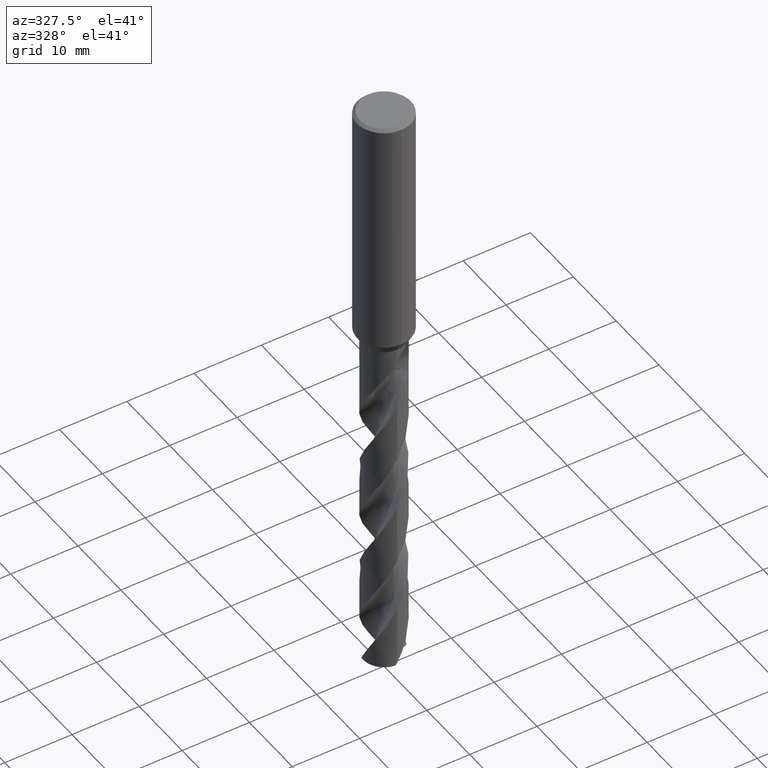
[diagram: clean part render]
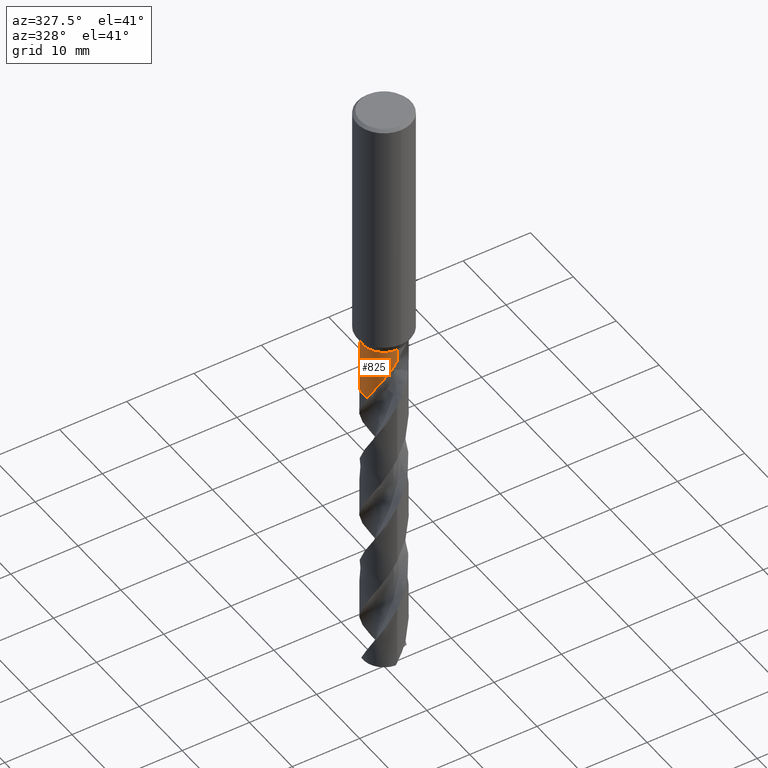
[diagram: same view with one face highlighted and labeled with its STEP entity id]
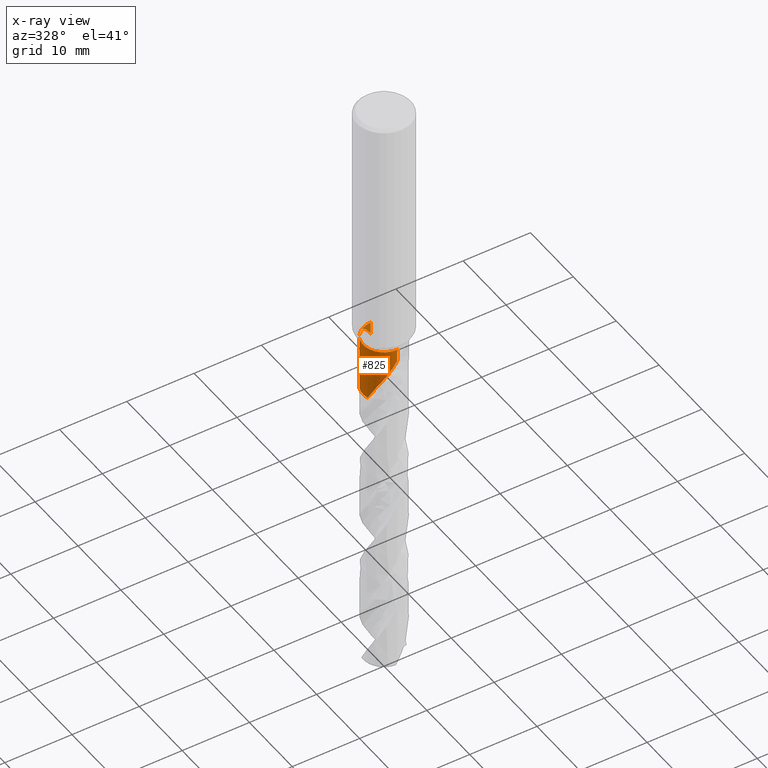
[diagram: x-ray of the same camera — body ghosted, the highlighted face saturated]
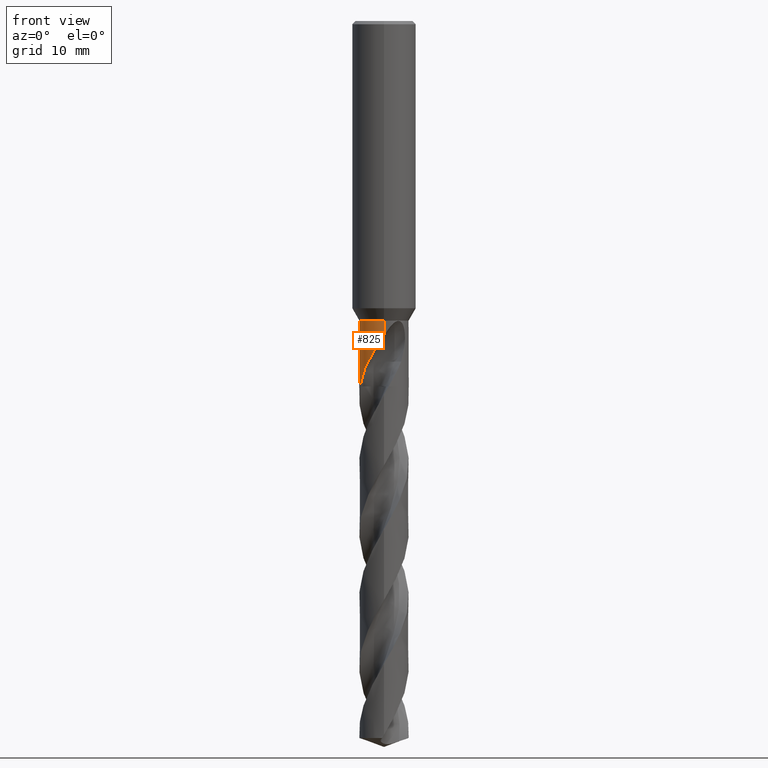
[diagram: same view with one face highlighted and labeled with its STEP entity id]
A machine part, auxiliary view. The second image highlights one B-rep face of the part: STEP entity #825.
The next image is the same camera in x-ray: the body ghosted, the highlighted face saturated — about 0% of this face is hidden behind the body in this view.
A second angle (front view) of the same face is appended — the face is thin or edge-on in the first view.
In plain terms, the highlighted cylindrical surface (edge-blend (fillet) strip) has radius 3.1 mm, axis along (-0, -0, 1).
Its self-contained STEP definition (entity closure, byte-faithful):
#311=VERTEX_POINT('',#867);
#441=EDGE_CURVE('',#507,#529,#1014,.T.);
#445=EDGE_CURVE('',#485,#507,#1018,.T.);
#465=VERTEX_POINT('',#1040);
#485=VERTEX_POINT('',#1063);
#489=EDGE_CURVE('',#643,#729,#1067,.T.);
#507=VERTEX_POINT('',#1086);
#529=VERTEX_POINT('',#1111);
#573=EDGE_CURVE('',#805,#465,#1159,.T.);
#619=EDGE_CURVE('',#729,#805,#1210,.T.);
#643=VERTEX_POINT('',#1236);
#669=EDGE_CURVE('',#529,#311,#1262,.T.);
#685=VERTEX_POINT('',#1279);
#729=VERTEX_POINT('',#1326);
#751=EDGE_CURVE('',#311,#685,#1351,.T.);
#763=EDGE_CURVE('',#685,#643,#1363,.T.);
#805=VERTEX_POINT('',#1409);
#817=EDGE_CURVE('',#485,#465,#1421,.T.);
#825=ADVANCED_FACE('',(#1429),#1430,.T.);
#867=CARTESIAN_POINT('',(3.79627969684937E-016,-3.1,-37.558845726812));
#1014=B_SPLINE_CURVE_WITH_KNOTS('',3,(#4894,#4895,#4896,#4897,#4898,#4899,#4900,#4901,#4902,#4903,#4904,#4905,#4906,#4907,#4908,#4909,#4910,#4911,#4912,#4913,#4914,#4915,#4916,#4917,#4918,#4919,#4920,#4921,#4922,#4923),.UNSPECIFIED.,.F.,.F.,(4,2,2,2,2,2,2,2,2,2,2,2,2,2,4),(0.0,1.51882806749273,2.34814309206107,3.09929389552643,3.97195054001823,5.02021064371514,5.92875563349046,6.34047695448428,6.64139503833722,6.92615155074463,7.28738216248135,7.81587719972129,8.56719503408588,9.05885319429526,9.57555253419861),.UNSPECIFIED.);
#1018=B_SPLINE_CURVE_WITH_KNOTS('',3,(#4929,#4930,#4931,#4932,#4933,#4934,#4935,#4936,#4937,#4938,#4939,#4940,#4941,#4942),.UNSPECIFIED.,.F.,.F.,(4,2,2,2,2,2,4),(0.0,0.223429847625214,1.43257159950263,2.01623723256052,2.69116966202911,3.32503215169044,3.98705332850251),.UNSPECIFIED.);
#1040=CARTESIAN_POINT('',(-0.590423451363101,3.0432548608489,-45.8));
#1063=CARTESIAN_POINT('',(-2.98248827714928,-0.845436973799404,-45.8));
#1067=B_SPLINE_CURVE_WITH_KNOTS('',3,(#6479,#6480,#6481,#6482,#6483,#6484,#6485,#6486,#6487,#6488,#6489,#6490,#6491,#6492,#6493,#6494,#6495,#6496,#6497,#6498,#6499,#6500,#6501,#6502,#6503,#6504,#6505,#6506,#6507,#6508),.UNSPECIFIED.,.F.,.F.,(4,2,2,2,2,2,2,2,2,2,2,2,2,2,4),(0.0,1.51882806749271,2.34814309206096,3.09929389552615,3.97195054001766,5.02021064371434,5.92875563348945,6.34047695448318,6.64139503833595,6.92615155074314,7.28738216247963,7.81587719972054,8.56719503408842,9.05885319430007,9.57555253420571),.UNSPECIFIED.);
#1086=CARTESIAN_POINT('',(-1.97536810780282,-2.38912553849217,-42.6922));
#1111=CARTESIAN_POINT('',(9.17234032325222E-013,-3.1,-39.3969657646597));
#1159=B_SPLINE_CURVE_WITH_KNOTS('',3,(#8223,#8224,#8225,#8226,#8227,#8228,#8229,#8230,#8231,#8232,#8233,#8234,#8235,#8236,#8237,#8238),.UNSPECIFIED.,.F.,.F.,(4,2,2,2,2,2,2,4),(0.0,0.855645555207331,1.6387157867661,2.06548718810102,2.70186416562109,3.02034895438932,3.17996382495218,3.3398075156364),.UNSPECIFIED.);
#1210=B_SPLINE_CURVE_WITH_KNOTS('',3,(#8446,#8447,#8448,#8449),.UNSPECIFIED.,.F.,.F.,(4,4),(0.0,1.78163168796761),.UNSPECIFIED.);
#1236=CARTESIAN_POINT('',(-9.18788344559697E-013,3.1,-39.3969657646597));
#1262=LINE('',#8924,#8925);
#1279=CARTESIAN_POINT('',(0.0,3.1,-37.558845726812));
#1326=CARTESIAN_POINT('',(-2.5222907062751,1.80223461098667,-40.9947012967414));
#1351=CIRCLE('',#10976,3.1);
#1363=LINE('',#11009,#11010);
#1409=CARTESIAN_POINT('',(-2.15473976281074,2.2286983991923,-42.6922));
#1421=CIRCLE('',#11625,3.1);
#1429=FACE_OUTER_BOUND('',#11664,.T.);
#1430=CYLINDRICAL_SURFACE('',#11665,3.1);
#4894=CARTESIAN_POINT('',(-1.97536810780282,-2.38912553849218,-42.6922));
#4895=CARTESIAN_POINT('',(-1.7708807234358,-2.55819905556719,-42.261022001472));
#4896=CARTESIAN_POINT('',(-1.53576649982898,-2.70849367566801,-41.8590250964486));
#4897=CARTESIAN_POINT('',(-1.1257973591669,-2.89271122258338,-41.1874616926583));
#4898=CARTESIAN_POINT('',(-0.978271281837683,-2.9457036191997,-40.9511832219425));
#4899=CARTESIAN_POINT('',(-0.692679434102976,-3.02490259327778,-40.4938093138893));
#4900=CARTESIAN_POINT('',(-0.555888832730762,-3.05288340430265,-40.2748457808992));
#4901=CARTESIAN_POINT('',(-0.259794797245681,-3.09326662945122,-39.8029211960476));
#4902=CARTESIAN_POINT('',(-0.0980180957186709,-3.10274750096445,-39.5462661558878));
#4903=CARTESIAN_POINT('',(0.261246521940544,-3.09519051117856,-38.9971963347391));
#4904=CARTESIAN_POINT('',(0.474254128986156,-3.0718168647194,-38.6847696046472));
#4905=CARTESIAN_POINT('',(0.885011757644606,-2.97742290574301,-38.169599482215));
#4906=CARTESIAN_POINT('',(1.11226752420549,-2.90550662943275,-37.9182166185662));
#4907=CARTESIAN_POINT('',(1.45621687591263,-2.73927441599933,-37.6828219096917));
#4908=CARTESIAN_POINT('',(1.57006637132762,-2.6765179412803,-37.6246464646858));
#4909=CARTESIAN_POINT('',(1.76955686207914,-2.54730081379236,-37.5799573040035));
#4910=CARTESIAN_POINT('',(1.85137911464216,-2.48845436381772,-37.5791228570071));
#4911=CARTESIAN_POINT('',(2.00377747902953,-2.36724296106536,-37.6182352139647));
#4912=CARTESIAN_POINT('',(2.07042891922598,-2.30870027340028,-37.6549065146684));
#4913=CARTESIAN_POINT('',(2.20606386004693,-2.18040854645807,-37.769646790266));
#4914=CARTESIAN_POINT('',(2.26881472191503,-2.11392455348813,-37.8543618397177));
#4915=CARTESIAN_POINT('',(2.39734877656141,-1.9687518895752,-38.0863379504033));
#4916=CARTESIAN_POINT('',(2.45878549308938,-1.88969499072987,-38.2583956716657));
#4917=CARTESIAN_POINT('',(2.57431496444712,-1.73094973858955,-38.7397940396019));
#4918=CARTESIAN_POINT('',(2.61608153922309,-1.66333190051155,-39.0826395058669));
#4919=CARTESIAN_POINT('',(2.63675433887376,-1.63026516108643,-39.7171628866849));
#4920=CARTESIAN_POINT('',(2.63189355114085,-1.63832480796253,-39.9698619826939));
#4921=CARTESIAN_POINT('',(2.59756121997833,-1.69226152419043,-40.4827148869004));
#4922=CARTESIAN_POINT('',(2.56690652348506,-1.73979320606883,-40.7409383471765));
#4923=CARTESIAN_POINT('',(2.5222907062751,-1.80223461098667,-40.9947012967415));
#4929=CARTESIAN_POINT('',(-2.98248827714928,-0.845436973799404,-45.8));
#4930=CARTESIAN_POINT('',(-2.97238907724501,-0.881064402284964,-45.7353822097793));
#4931=CARTESIAN_POINT('',(-2.96165327019073,-0.916517370260646,-45.6705562454397));
#4932=CARTESIAN_POINT('',(-2.88812847395692,-1.14435356602685,-45.2538243497091));
#4933=CARTESIAN_POINT('',(-2.81093488282166,-1.32150915315679,-44.9340281177597));
#4934=CARTESIAN_POINT('',(-2.67231804506066,-1.57401091626332,-44.4374756586375));
#4935=CARTESIAN_POINT('',(-2.62457945495606,-1.65185784763117,-44.2776007304235));
#4936=CARTESIAN_POINT('',(-2.52401092983966,-1.80244229423906,-43.946163039987));
#4937=CARTESIAN_POINT('',(-2.45650059015832,-1.89308372848714,-43.7166867226689));
#4938=CARTESIAN_POINT('',(-2.34557126969632,-2.02866793011115,-43.4045544041174));
#4939=CARTESIAN_POINT('',(-2.28783584278733,-2.09418138240644,-43.2633552873204));
#4940=CARTESIAN_POINT('',(-2.1465743087352,-2.2389498094204,-42.9720646786313));
#4941=CARTESIAN_POINT('',(-2.06589564671656,-2.31427588728425,-42.8300100260213));
#4942=CARTESIAN_POINT('',(-1.97536810780282,-2.38912553849217,-42.6922));
#6479=CARTESIAN_POINT('',(1.97536810780282,2.38912553849217,-42.6922));
#6480=CARTESIAN_POINT('',(1.7708807234358,2.55819905556719,-42.261022001472));
#6481=CARTESIAN_POINT('',(1.535766499829,2.70849367566801,-41.8590250964487));
#6482=CARTESIAN_POINT('',(1.1257973591669,2.89271122258338,-41.1874616926583));
#6483=CARTESIAN_POINT('',(0.978271281837697,2.9457036191997,-40.9511832219425));
#6484=CARTESIAN_POINT('',(0.692679434102977,3.02490259327778,-40.4938093138893));
#6485=CARTESIAN_POINT('',(0.555888832730763,3.05288340430265,-40.2748457808992));
#6486=CARTESIAN_POINT('',(0.259794797245689,3.09326662945122,-39.8029211960476));
#6487=CARTESIAN_POINT('',(0.0980180957186769,3.10274750096446,-39.5462661558878));
#6488=CARTESIAN_POINT('',(-0.261246521940578,3.09519051117856,-38.997196334739));
#6489=CARTESIAN_POINT('',(-0.474254128986169,3.0718168647194,-38.6847696046472));
#6490=CARTESIAN_POINT('',(-0.885011757644605,2.97742290574301,-38.169599482215));
#6491=CARTESIAN_POINT('',(-1.11226752420549,2.90550662943275,-37.9182166185662));
#6492=CARTESIAN_POINT('',(-1.45621687591263,2.73927441599933,-37.6828219096917));
#6493=CARTESIAN_POINT('',(-1.57006637132762,2.6765179412803,-37.6246464646858));
#6494=CARTESIAN_POINT('',(-1.76955686207911,2.54730081379238,-37.5799573040035));
#6495=CARTESIAN_POINT('',(-1.85137911464215,2.48845436381773,-37.5791228570071));
#6496=CARTESIAN_POINT('',(-2.00377747902953,2.36724296106536,-37.6182352139647));
#6497=CARTESIAN_POINT('',(-2.07042891922598,2.30870027340028,-37.6549065146684));
#6498=CARTESIAN_POINT('',(-2.20606386004694,2.18040854645806,-37.769646790266));
#6499=CARTESIAN_POINT('',(-2.26881472191505,2.11392455348811,-37.8543618397178));
#6500=CARTESIAN_POINT('',(-2.39734877656157,1.96875188957502,-38.0863379504036));
#6501=CARTESIAN_POINT('',(-2.45878549308949,1.88969499072972,-38.2583956716662));
#6502=CARTESIAN_POINT('',(-2.57431496444715,1.73094973858952,-38.739794039602));
#6503=CARTESIAN_POINT('',(-2.61608153922309,1.66333190051154,-39.082639505867));
#6504=CARTESIAN_POINT('',(-2.63675433887376,1.63026516108643,-39.7171628866849));
#6505=CARTESIAN_POINT('',(-2.63189355114086,1.63832480796253,-39.9698619826939));
#6506=CARTESIAN_POINT('',(-2.59756121997833,1.69226152419043,-40.4827148869004));
#6507=CARTESIAN_POINT('',(-2.56690652348506,1.73979320606884,-40.7409383471765));
#6508=CARTESIAN_POINT('',(-2.5222907062751,1.80223461098667,-40.9947012967415));
#8223=CARTESIAN_POINT('',(-2.15473976281074,2.2286983991923,-42.6922));
#8224=CARTESIAN_POINT('',(-2.05745378154137,2.32275597660211,-42.9432703323259));
#8225=CARTESIAN_POINT('',(-1.95312056281682,2.41191997608187,-43.1888964102849));
#8226=CARTESIAN_POINT('',(-1.72386272775284,2.58006884890116,-43.6723506308993));
#8227=CARTESIAN_POINT('',(-1.60867730749579,2.65393030109735,-43.900642245543));
#8228=CARTESIAN_POINT('',(-1.41109871208575,2.76135726587913,-44.2902240224518));
#8229=CARTESIAN_POINT('',(-1.34003390996481,2.79653048041707,-44.4283104247497));
#8230=CARTESIAN_POINT('',(-1.15997420264872,2.87722248940533,-44.7718895601009));
#8231=CARTESIAN_POINT('',(-1.04928221644319,2.91943486055131,-44.9771597271342));
#8232=CARTESIAN_POINT('',(-0.879471024583934,2.97322393219312,-45.2852701729439));
#8233=CARTESIAN_POINT('',(-0.822324742905191,2.98953385212149,-45.3879469454682));
#8234=CARTESIAN_POINT('',(-0.735883263183661,3.01153824745903,-45.5422130662723));
#8235=CARTESIAN_POINT('',(-0.706929959139741,3.01846577484262,-45.5937101973142));
#8236=CARTESIAN_POINT('',(-0.648810697036683,3.03149019813853,-45.6968117188694));
#8237=CARTESIAN_POINT('',(-0.619650961001202,3.0375844165699,-45.7484101927376));
#8238=CARTESIAN_POINT('',(-0.590423451363098,3.04325486084891,-45.8));
#8446=CARTESIAN_POINT('',(-2.52229070632772,1.80223461091303,-40.9947012967704));
#8447=CARTESIAN_POINT('',(-2.42234926158182,1.94210617687515,-41.5631534197898));
#8448=CARTESIAN_POINT('',(-2.30189310764169,2.08642829057071,-42.1349883778821));
#8449=CARTESIAN_POINT('',(-2.15473976281074,2.2286983991923,-42.6922));
#8924=CARTESIAN_POINT('',(3.79627969684937E-016,-3.1,-41.679422863406));
#8925=VECTOR('',#12092,1.0);
#10976=AXIS2_PLACEMENT_3D('',#12179,#12180,#12181);
#11009=CARTESIAN_POINT('',(-3.79627969684937E-016,3.1,-41.679422863406));
#11010=VECTOR('',#12184,1.0);
#11625=AXIS2_PLACEMENT_3D('',#12238,#12239,#12240);
#11664=EDGE_LOOP('',(#12242,#12243,#12244,#12245,#12246,#12247,#12248,#12249,#12250));
#11665=AXIS2_PLACEMENT_3D('',#12251,#12252,#12253);
#12092=DIRECTION('',(-0.0,-0.0,1.0));
#12179=CARTESIAN_POINT('',(0.0,0.0,-37.558845726812));
#12180=DIRECTION('',(0.0,0.0,-1.0));
#12181=DIRECTION('',(0.0,1.0,0.0));
#12184=DIRECTION('',(0.0,0.0,-1.0));
#12238=CARTESIAN_POINT('',(0.0,0.0,-45.8));
#12239=DIRECTION('',(0.0,0.0,-1.0));
#12240=DIRECTION('',(0.0,1.0,0.0));
#12242=ORIENTED_EDGE('',*,*,#763,.T.);
#12243=ORIENTED_EDGE('',*,*,#489,.T.);
#12244=ORIENTED_EDGE('',*,*,#619,.T.);
#12245=ORIENTED_EDGE('',*,*,#573,.T.);
#12246=ORIENTED_EDGE('',*,*,#817,.F.);
#12247=ORIENTED_EDGE('',*,*,#445,.T.);
#12248=ORIENTED_EDGE('',*,*,#441,.T.);
#12249=ORIENTED_EDGE('',*,*,#669,.T.);
#12250=ORIENTED_EDGE('',*,*,#751,.T.);
#12251=CARTESIAN_POINT('',(0.0,0.0,-41.679422863406));
#12252=DIRECTION('',(-0.0,-0.0,1.0));
#12253=DIRECTION('',(0.0,1.0,0.0));